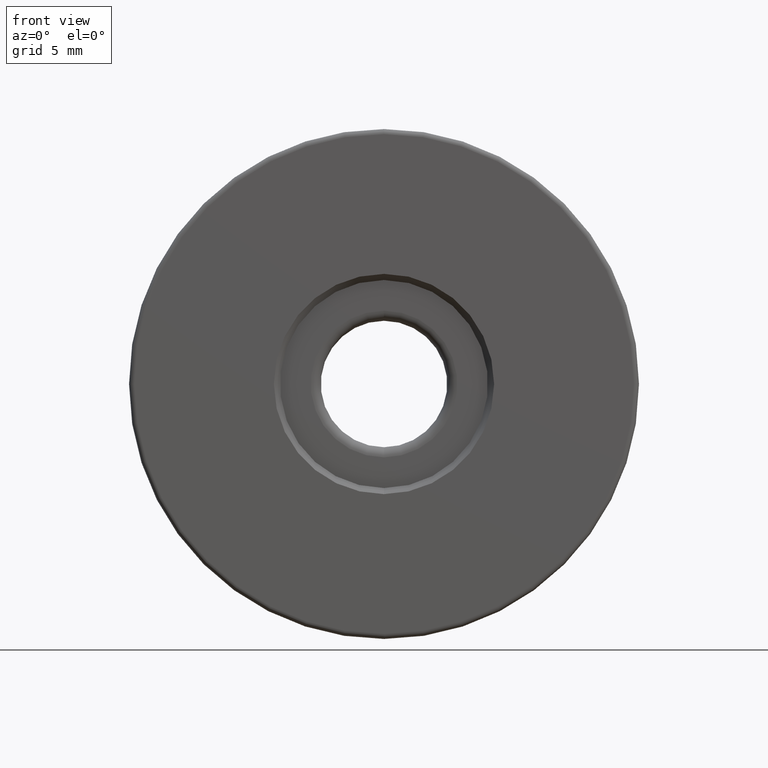
[diagram: clean part render]
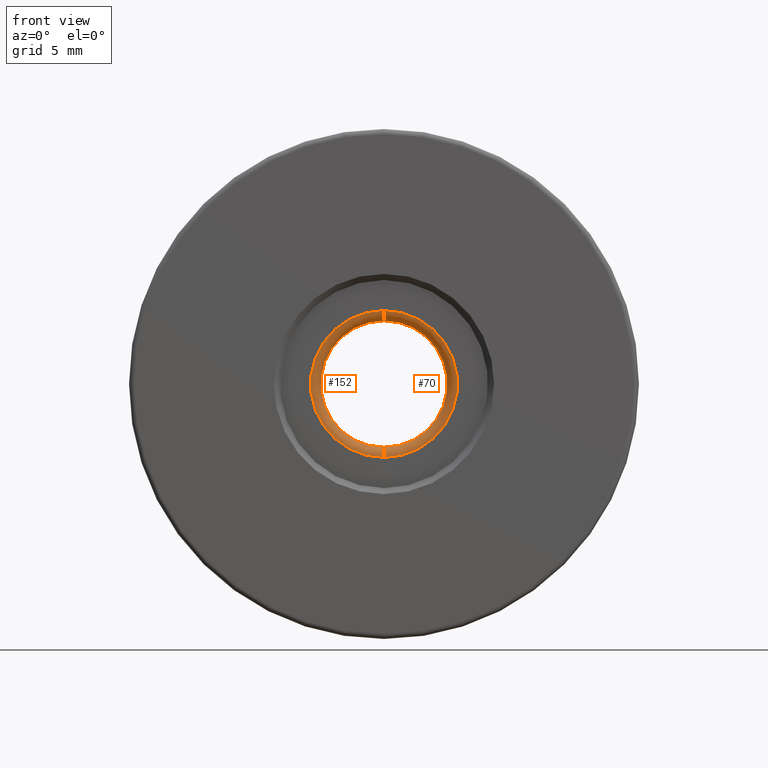
[diagram: same view with one multi-face feature highlighted, each face labeled with its STEP entity id]
A machine part, front view. The highlighted faces form ONE feature: a constant-radius fillet chain: 2 tangent blend faces with common blend radius 0.5 mm. The faces share edges in the B-rep.
Their STEP definitions:
[1] entity #70 (Torus):
#19 = ORIENTED_EDGE ( 'NONE', *, *, #517, .T. ) ;
#36 = AXIS2_PLACEMENT_3D ( 'NONE', #60, #154, #116 ) ;
#51 = CARTESIAN_POINT ( 'NONE',  ( -4.682026255059962949, -4.294975976998275158, 28.60000000000000142 ) ) ;
#54 = CARTESIAN_POINT ( 'NONE',  ( -4.682026255059964726, -3.794975976998274714, 25.00000000000000000 ) ) ;
#60 = CARTESIAN_POINT ( 'NONE',  ( -4.682026255059964726, -3.794975976998274714, 21.40000000000000213 ) ) ;
#70 = ADVANCED_FACE ( 'NONE', ( #431 ), #309, .T. ) ;
#96 = AXIS2_PLACEMENT_3D ( 'NONE', #101, #389, #143 ) ;
#101 = CARTESIAN_POINT ( 'NONE',  ( -4.682026255059963837, -3.794975976998274714, 28.60000000000000142 ) ) ;
#107 = DIRECTION ( 'NONE',  ( 0.0000000000000000000, -1.000000000000000000, 0.0000000000000000000 ) ) ;
#116 = DIRECTION ( 'NONE',  ( 0.0000000000000000000, 0.0000000000000000000, 1.000000000000000000 ) ) ;
#143 = DIRECTION ( 'NONE',  ( 0.0000000000000000000, 0.0000000000000000000, -1.000000000000000000 ) ) ;
#154 = DIRECTION ( 'NONE',  ( -1.000000000000000000, -0.0000000000000000000, -0.0000000000000000000 ) ) ;
#156 = DIRECTION ( 'NONE',  ( 0.0000000000000000000, 0.0000000000000000000, -1.000000000000000000 ) ) ;
#164 = EDGE_LOOP ( 'NONE', ( #584, #19, #609, #316 ) ) ;
#168 = AXIS2_PLACEMENT_3D ( 'NONE', #190, #533, #480 ) ;
#190 = CARTESIAN_POINT ( 'NONE',  ( -4.682026255059964726, -4.294975976998275158, 25.00000000000000000 ) ) ;
#194 = VERTEX_POINT ( 'NONE', #302 ) ;
#195 = AXIS2_PLACEMENT_3D ( 'NONE', #54, #202, #156 ) ;
#202 = DIRECTION ( 'NONE',  ( 0.0000000000000000000, -1.000000000000000000, 0.0000000000000000000 ) ) ;
#272 = CARTESIAN_POINT ( 'NONE',  ( -4.682026255059964726, -4.294975976998275158, 21.40000000000000213 ) ) ;
#273 = VERTEX_POINT ( 'NONE', #593 ) ;
#300 = CIRCLE ( 'NONE', #36, 0.5000000000000004441 ) ;
#301 = DIRECTION ( 'NONE',  ( 0.0000000000000000000, 0.0000000000000000000, -1.000000000000000000 ) ) ;
#302 = CARTESIAN_POINT ( 'NONE',  ( -4.682026255059964726, -3.794975976998274714, 21.90000000000000213 ) ) ;
#309 = TOROIDAL_SURFACE ( 'NONE', #195, 3.600000000000000089, 0.5000000000000000000 ) ;
#311 = AXIS2_PLACEMENT_3D ( 'NONE', #536, #107, #301 ) ;
#316 = ORIENTED_EDGE ( 'NONE', *, *, #575, .F. ) ;
#338 = VERTEX_POINT ( 'NONE', #272 ) ;
#339 = CIRCLE ( 'NONE', #311, 3.099999999999998757 ) ;
#389 = DIRECTION ( 'NONE',  ( 1.000000000000000000, 0.0000000000000000000, -1.224646799147353207E-16 ) ) ;
#407 = CIRCLE ( 'NONE', #96, 0.5000000000000004441 ) ;
#431 = FACE_OUTER_BOUND ( 'NONE', #164, .T. ) ;
#480 = DIRECTION ( 'NONE',  ( 0.0000000000000000000, 0.0000000000000000000, -1.000000000000000000 ) ) ;
#489 = EDGE_CURVE ( 'NONE', #552, #338, #498, .T. ) ;
#498 = CIRCLE ( 'NONE', #168, 3.599999999999999201 ) ;
#517 = EDGE_CURVE ( 'NONE', #552, #273, #407, .T. ) ;
#533 = DIRECTION ( 'NONE',  ( -0.0000000000000000000, 1.000000000000000000, -0.0000000000000000000 ) ) ;
#536 = CARTESIAN_POINT ( 'NONE',  ( -4.682026255059964726, -3.794975976998274714, 25.00000000000000000 ) ) ;
#552 = VERTEX_POINT ( 'NONE', #51 ) ;
#567 = EDGE_CURVE ( 'NONE', #194, #273, #339, .T. ) ;
#575 = EDGE_CURVE ( 'NONE', #338, #194, #300, .T. ) ;
#584 = ORIENTED_EDGE ( 'NONE', *, *, #489, .F. ) ;
#593 = CARTESIAN_POINT ( 'NONE',  ( -4.682026255059964726, -3.794975976998274714, 28.10000000000000142 ) ) ;
#609 = ORIENTED_EDGE ( 'NONE', *, *, #567, .F. ) ;
[2] entity #152 (Torus):
#11 = DIRECTION ( 'NONE',  ( -0.0000000000000000000, 1.000000000000000000, -0.0000000000000000000 ) ) ;
#16 = EDGE_CURVE ( 'NONE', #273, #194, #245, .T. ) ;
#36 = AXIS2_PLACEMENT_3D ( 'NONE', #60, #154, #116 ) ;
#51 = CARTESIAN_POINT ( 'NONE',  ( -4.682026255059962949, -4.294975976998275158, 28.60000000000000142 ) ) ;
#60 = CARTESIAN_POINT ( 'NONE',  ( -4.682026255059964726, -3.794975976998274714, 21.40000000000000213 ) ) ;
#61 = CIRCLE ( 'NONE', #216, 3.599999999999999201 ) ;
#96 = AXIS2_PLACEMENT_3D ( 'NONE', #101, #389, #143 ) ;
#101 = CARTESIAN_POINT ( 'NONE',  ( -4.682026255059963837, -3.794975976998274714, 28.60000000000000142 ) ) ;
#112 = EDGE_CURVE ( 'NONE', #338, #552, #61, .T. ) ;
#116 = DIRECTION ( 'NONE',  ( 0.0000000000000000000, 0.0000000000000000000, 1.000000000000000000 ) ) ;
#117 = CARTESIAN_POINT ( 'NONE',  ( -4.682026255059964726, -3.794975976998274714, 25.00000000000000000 ) ) ;
#141 = EDGE_LOOP ( 'NONE', ( #413, #457, #516, #426 ) ) ;
#143 = DIRECTION ( 'NONE',  ( 0.0000000000000000000, 0.0000000000000000000, -1.000000000000000000 ) ) ;
#152 = ADVANCED_FACE ( 'NONE', ( #546 ), #387, .T. ) ;
#154 = DIRECTION ( 'NONE',  ( -1.000000000000000000, -0.0000000000000000000, -0.0000000000000000000 ) ) ;
#159 = CARTESIAN_POINT ( 'NONE',  ( -4.682026255059964726, -4.294975976998275158, 25.00000000000000000 ) ) ;
#194 = VERTEX_POINT ( 'NONE', #302 ) ;
#216 = AXIS2_PLACEMENT_3D ( 'NONE', #159, #11, #589 ) ;
#245 = CIRCLE ( 'NONE', #579, 3.099999999999998757 ) ;
#272 = CARTESIAN_POINT ( 'NONE',  ( -4.682026255059964726, -4.294975976998275158, 21.40000000000000213 ) ) ;
#273 = VERTEX_POINT ( 'NONE', #593 ) ;
#297 = DIRECTION ( 'NONE',  ( 0.0000000000000000000, -1.000000000000000000, 0.0000000000000000000 ) ) ;
#300 = CIRCLE ( 'NONE', #36, 0.5000000000000004441 ) ;
#302 = CARTESIAN_POINT ( 'NONE',  ( -4.682026255059964726, -3.794975976998274714, 21.90000000000000213 ) ) ;
#307 = DIRECTION ( 'NONE',  ( 0.0000000000000000000, 0.0000000000000000000, -1.000000000000000000 ) ) ;
#338 = VERTEX_POINT ( 'NONE', #272 ) ;
#382 = CARTESIAN_POINT ( 'NONE',  ( -4.682026255059964726, -3.794975976998274714, 25.00000000000000000 ) ) ;
#387 = TOROIDAL_SURFACE ( 'NONE', #588, 3.600000000000000089, 0.5000000000000000000 ) ;
#389 = DIRECTION ( 'NONE',  ( 1.000000000000000000, 0.0000000000000000000, -1.224646799147353207E-16 ) ) ;
#407 = CIRCLE ( 'NONE', #96, 0.5000000000000004441 ) ;
#413 = ORIENTED_EDGE ( 'NONE', *, *, #517, .F. ) ;
#426 = ORIENTED_EDGE ( 'NONE', *, *, #16, .F. ) ;
#457 = ORIENTED_EDGE ( 'NONE', *, *, #112, .F. ) ;
#516 = ORIENTED_EDGE ( 'NONE', *, *, #575, .T. ) ;
#517 = EDGE_CURVE ( 'NONE', #552, #273, #407, .T. ) ;
#518 = DIRECTION ( 'NONE',  ( 0.0000000000000000000, 0.0000000000000000000, -1.000000000000000000 ) ) ;
#524 = DIRECTION ( 'NONE',  ( 0.0000000000000000000, -1.000000000000000000, 0.0000000000000000000 ) ) ;
#546 = FACE_OUTER_BOUND ( 'NONE', #141, .T. ) ;
#552 = VERTEX_POINT ( 'NONE', #51 ) ;
#575 = EDGE_CURVE ( 'NONE', #338, #194, #300, .T. ) ;
#579 = AXIS2_PLACEMENT_3D ( 'NONE', #382, #524, #518 ) ;
#588 = AXIS2_PLACEMENT_3D ( 'NONE', #117, #297, #307 ) ;
#589 = DIRECTION ( 'NONE',  ( 0.0000000000000000000, 0.0000000000000000000, -1.000000000000000000 ) ) ;
#593 = CARTESIAN_POINT ( 'NONE',  ( -4.682026255059964726, -3.794975976998274714, 28.10000000000000142 ) ) ;